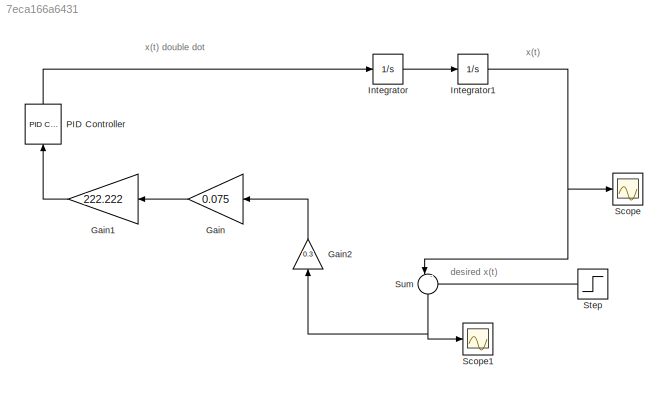
MODEL slx_7eca166a6431
KIND model
CONFIG AbsTol = auto
CONFIG EnableMultiTasking = off
CONFIG FixedStep = auto
CONFIG MaxStep = auto
CONFIG MinStep = auto
CONFIG RelTol = 1e-3
CONFIG SampleTimeConstraint = Unconstrained
CONFIG SolverName = VariableStepAuto
CONFIG StartTime = 0.0
CONFIG StopTime = 10
BLOCK [Gain] Gain
  Gain = 0.075
BLOCK [Gain] Gain1
  Gain = 222.222
BLOCK [Gain] Gain2
  Gain = 0.3
  NameLocation = right
BLOCK [Integrator] Integrator
BLOCK [Integrator] Integrator1
  InitialCondition = 0.30
BLOCK [Reference] PID Controller  REF=slpidlib/PID Controller
  LibrarySourceBlock = simulink/Continuous/PID Controller
  NameLocation = left
  SourceBlock = slpidlib/PID Controller
  SourceType = PID 1dof
BLOCK [Scope] Scope
  Floating = off
  NumInputPorts = 1
  ScopeSpecificationString = Simulink.scopes.TimeScopeBlockCfg('CurrentConfiguration', extmgr.ConfigurationSet(extmgr.Configuration('Core','General UI',true),extmgr.Configuration('Core','Source UI',true),extmgr.Configuration('Sources','WiredSimulink',true),extmgr.Configuration('Visuals','Time Domain',true,'SerializedDisplays',{struct('MinYLimReal','0.07375','MaxYLimReal','0.32514','YLabelReal','','MinYLimMag','0.07375','MaxYL...<+1484ch>
BLOCK [Scope] Scope1
  Floating = off
  NumInputPorts = 1
  ScopeSpecificationString = Simulink.scopes.TimeScopeBlockCfg('CurrentConfiguration', extmgr.ConfigurationSet(extmgr.Configuration('Core','General UI',true),extmgr.Configuration('Core','Source UI',true),extmgr.Configuration('Sources','WiredSimulink',true,'DataLoggingVariableName','ScopeData1'),extmgr.Configuration('Visuals','Time Domain',true,'SerializedDisplays',{struct('MinYLimReal','-0.15514','MaxYLimReal','0.09625','YLab...<+1493ch>
BLOCK [Step] Step
  After = 0.17
  Before = 0.17
  SampleTime = 0
  Time = 100
BLOCK [Sum] Sum
  Inputs = |-+
  NameLocation = right
ANNOTATION (root): desired x(t)
ANNOTATION (root): x(t)
ANNOTATION (root): x(t) double dot
LINE Gain1:1 -> PID Controller:1
LINE Gain2:1 -> Gain:1
LINE Gain:1 -> Gain1:1
NET Integrator1:1 -> Scope:1, Sum:1
LINE Integrator:1 -> Integrator1:1
LINE PID Controller:1 -> Integrator:1
LINE Step:1 -> Sum:2
NET Sum:1 -> Gain2:1, Scope1:1
note: NET lines group one-source signal fan-out (src -> all destinations, sorted); 1:1 wires keep LINE
